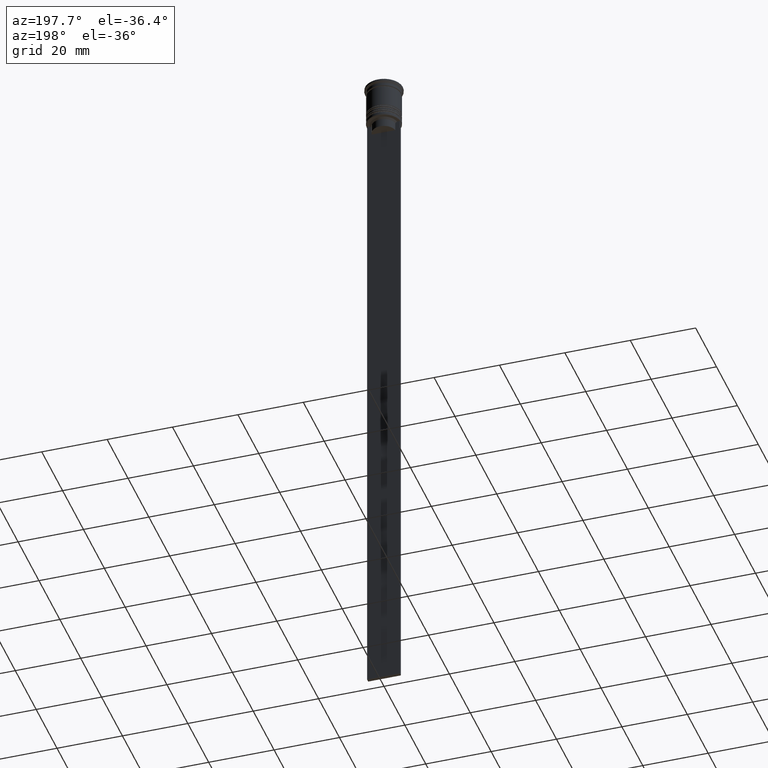
[diagram: clean part render]
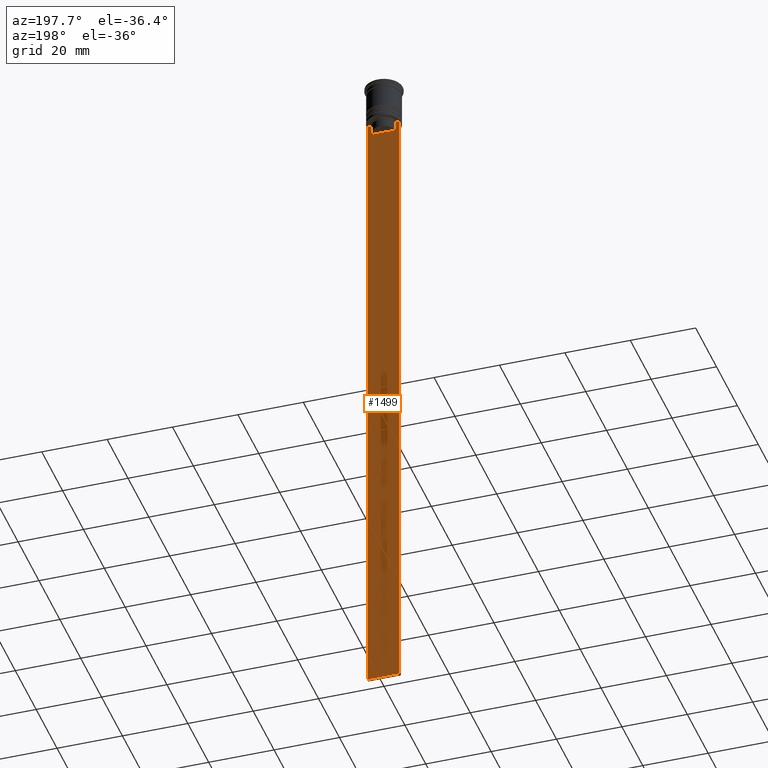
[diagram: same view with one face highlighted and labeled with its STEP entity id]
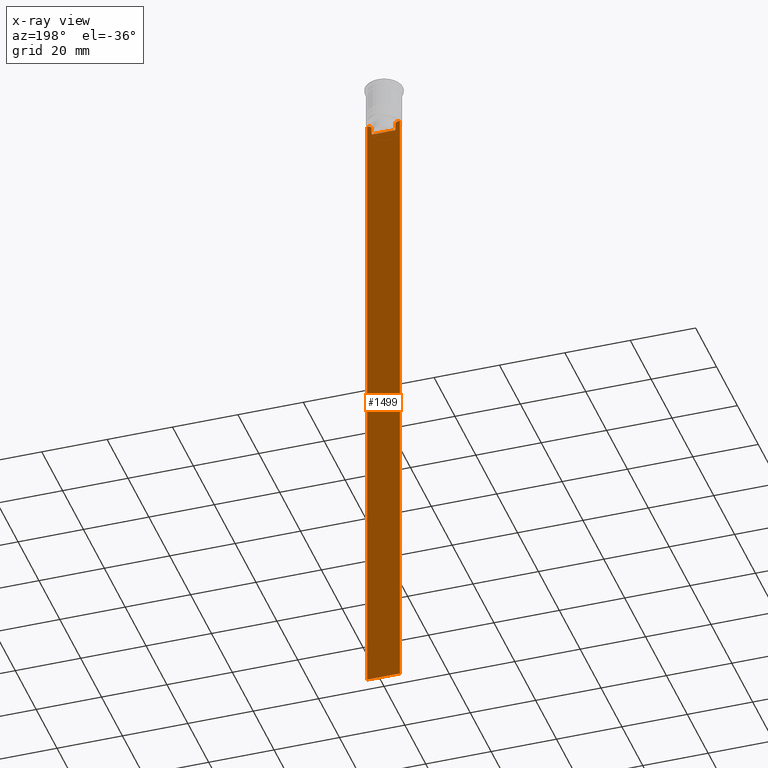
[diagram: x-ray of the same camera — body ghosted, the highlighted face saturated]
A machine part, auxiliary view. The second image highlights one B-rep face of the part: STEP entity #1499.
The next image is the same camera in x-ray: the body ghosted, the highlighted face saturated — about 0% of this face is hidden behind the body in this view.
In plain terms, the highlighted planar face has unit normal (0, -1, -0).
Its self-contained STEP definition (entity closure, byte-faithful):
#9 = DIRECTION ( 'NONE',  ( 1.000000000000000000, 0.000000000000000000, 0.000000000000000000 ) ) ;
#44 = CARTESIAN_POINT ( 'NONE',  ( -3.615591237958188042, 0.4999999999999991673, 0.000000000000000000 ) ) ;
#62 = VERTEX_POINT ( 'NONE', #1427 ) ;
#107 = LINE ( 'NONE', #438, #990 ) ;
#152 = ORIENTED_EDGE ( 'NONE', *, *, #2254, .T. ) ;
#168 = CARTESIAN_POINT ( 'NONE',  ( -3.615591237958188486, 0.4999999999999991673, -15.50000000000000000 ) ) ;
#172 = LINE ( 'NONE', #336, #1171 ) ;
#199 = LINE ( 'NONE', #213, #2249 ) ;
#213 = CARTESIAN_POINT ( 'NONE',  ( 5.000000000000000000, 0.4999999999999991673, -12.50000000000000000 ) ) ;
#219 = VERTEX_POINT ( 'NONE', #253 ) ;
#248 = B_SPLINE_CURVE_WITH_KNOTS ( 'NONE', 3,
 ( #1969, #2339, #1630, #705 ),
 .UNSPECIFIED., .F., .F.,
 ( 4, 4 ),
 ( 0.01745179617248911533, 0.01816207215777259493 ),
 .UNSPECIFIED. ) ;
#253 = CARTESIAN_POINT ( 'NONE',  ( 3.615591237958188042, 0.4999999999999991673, -13.00000000000000178 ) ) ;
#260 = EDGE_CURVE ( 'NONE', #62, #1756, #403, .T. ) ;
#263 = VERTEX_POINT ( 'NONE', #2262 ) ;
#276 = VERTEX_POINT ( 'NONE', #991 ) ;
#291 = VERTEX_POINT ( 'NONE', #799 ) ;
#306 = CARTESIAN_POINT ( 'NONE',  ( 3.615591237958188486, 0.4999999999999991673, -15.50000000000000000 ) ) ;
#313 = ORIENTED_EDGE ( 'NONE', *, *, #2170, .T. ) ;
#336 = CARTESIAN_POINT ( 'NONE',  ( -4.999999999999999112, 0.4999999999999991673, -2.450124378879110054 ) ) ;
#369 = VERTEX_POINT ( 'NONE', #306 ) ;
#403 = LINE ( 'NONE', #44, #803 ) ;
#438 = CARTESIAN_POINT ( 'NONE',  ( 0.000000000000000000, 0.4999999999999991673, -15.50000000000000000 ) ) ;
#466 = EDGE_CURVE ( 'NONE', #369, #219, #1433, .T. ) ;
#508 = CARTESIAN_POINT ( 'NONE',  ( 5.000000000000000000, 0.4999999999999991673, -12.50000000000000000 ) ) ;
#518 = CARTESIAN_POINT ( 'NONE',  ( -3.783746449387932920, 0.4999999999999991673, -12.83342999751715752 ) ) ;
#551 = CARTESIAN_POINT ( 'NONE',  ( -3.615591237958188042, 0.4999999999999991673, -13.00000000000000178 ) ) ;
#557 = ORIENTED_EDGE ( 'NONE', *, *, #1705, .T. ) ;
#646 = CARTESIAN_POINT ( 'NONE',  ( 5.000000000000000000, 0.4999999999999991673, -2.450124378879110054 ) ) ;
#674 = DIRECTION ( 'NONE',  ( 0.000000000000000000, 0.000000000000000000, -1.000000000000000000 ) ) ;
#705 = CARTESIAN_POINT ( 'NONE',  ( 4.119769411022908834, 0.4999999999999991673, -12.50000000000000000 ) ) ;
#709 = DIRECTION ( 'NONE',  ( 0.000000000000000000, 0.000000000000000000, -1.000000000000000000 ) ) ;
#724 = VERTEX_POINT ( 'NONE', #1524 ) ;
#799 = CARTESIAN_POINT ( 'NONE',  ( 5.000000000000000000, 0.4999999999999991673, -12.50000000000000000 ) ) ;
#803 = VECTOR ( 'NONE', #1668, 1000.000000000000000 ) ;
#851 = VECTOR ( 'NONE', #1604, 1000.000000000000000 ) ;
#865 = DIRECTION ( 'NONE',  ( -0.000000000000000000, -0.000000000000000000, 1.000000000000000000 ) ) ;
#867 = B_SPLINE_CURVE_WITH_KNOTS ( 'NONE', 3,
 ( #1789, #2147, #518, #551 ),
 .UNSPECIFIED., .F., .F.,
 ( 4, 4 ),
 ( 0.007067514914986626831, 0.007777582239375527978 ),
 .UNSPECIFIED. ) ;
#941 = DIRECTION ( 'NONE',  ( 1.000000000000000000, 0.000000000000000000, 0.000000000000000000 ) ) ;
#990 = VECTOR ( 'NONE', #1574, 1000.000000000000000 ) ;
#991 = CARTESIAN_POINT ( 'NONE',  ( -4.999999999999999112, 0.4999999999999993339, -12.50000000000000000 ) ) ;
#1100 = ORIENTED_EDGE ( 'NONE', *, *, #260, .T. ) ;
#1133 = AXIS2_PLACEMENT_3D ( 'NONE', #646, #1193, #674 ) ;
#1171 = VECTOR ( 'NONE', #709, 1000.000000000000000 ) ;
#1179 = CARTESIAN_POINT ( 'NONE',  ( 4.119769411022908834, 0.4999999999999991673, -12.50000000000000000 ) ) ;
#1193 = DIRECTION ( 'NONE',  ( 0.000000000000000000, -1.000000000000000000, -0.000000000000000000 ) ) ;
#1207 = FACE_OUTER_BOUND ( 'NONE', #1855, .T. ) ;
#1221 = EDGE_CURVE ( 'NONE', #724, #263, #2141, .T. ) ;
#1314 = EDGE_CURVE ( 'NONE', #276, #263, #172, .T. ) ;
#1347 = ORIENTED_EDGE ( 'NONE', *, *, #1221, .T. ) ;
#1419 = VECTOR ( 'NONE', #865, 1000.000000000000000 ) ;
#1427 = CARTESIAN_POINT ( 'NONE',  ( -3.615591237958188042, 0.4999999999999991673, -13.00000000000000178 ) ) ;
#1433 = LINE ( 'NONE', #2166, #1419 ) ;
#1434 = CARTESIAN_POINT ( 'NONE',  ( 5.000000000000000000, 0.4999999999999991673, -2.450124378879110054 ) ) ;
#1473 = ORIENTED_EDGE ( 'NONE', *, *, #1767, .T. ) ;
#1499 = ADVANCED_FACE ( 'NONE', ( #1207 ), #2272, .F. ) ;
#1524 = CARTESIAN_POINT ( 'NONE',  ( 5.000000000000000000, 0.4999999999999991673, -212.5000000000000284 ) ) ;
#1540 = VERTEX_POINT ( 'NONE', #1179 ) ;
#1574 = DIRECTION ( 'NONE',  ( 1.000000000000000000, 0.000000000000000000, 0.000000000000000000 ) ) ;
#1604 = DIRECTION ( 'NONE',  ( -1.000000000000000000, 0.000000000000000000, 0.000000000000000000 ) ) ;
#1630 = CARTESIAN_POINT ( 'NONE',  ( 3.951794168112527927, 0.4999999999999991673, -12.66675163073525923 ) ) ;
#1668 = DIRECTION ( 'NONE',  ( 0.000000000000000000, 0.000000000000000000, -1.000000000000000000 ) ) ;
#1691 = ORIENTED_EDGE ( 'NONE', *, *, #1314, .F. ) ;
#1705 = EDGE_CURVE ( 'NONE', #276, #1760, #2138, .T. ) ;
#1756 = VERTEX_POINT ( 'NONE', #168 ) ;
#1760 = VERTEX_POINT ( 'NONE', #1805 ) ;
#1767 = EDGE_CURVE ( 'NONE', #291, #724, #2333, .T. ) ;
#1789 = CARTESIAN_POINT ( 'NONE',  ( -4.119769411022908834, 0.4999999999999991673, -12.50000000000000000 ) ) ;
#1805 = CARTESIAN_POINT ( 'NONE',  ( -4.119769411022908834, 0.4999999999999991673, -12.50000000000000000 ) ) ;
#1855 = EDGE_LOOP ( 'NONE', ( #557, #313, #1100, #1901, #2301, #2083, #152, #1473, #1347, #1691 ) ) ;
#1901 = ORIENTED_EDGE ( 'NONE', *, *, #1972, .T. ) ;
#1969 = CARTESIAN_POINT ( 'NONE',  ( 3.615591237958188042, 0.4999999999999991673, -13.00000000000000178 ) ) ;
#1972 = EDGE_CURVE ( 'NONE', #1756, #369, #107, .T. ) ;
#2077 = EDGE_CURVE ( 'NONE', #219, #1540, #248, .T. ) ;
#2083 = ORIENTED_EDGE ( 'NONE', *, *, #2077, .T. ) ;
#2138 = LINE ( 'NONE', #508, #2239 ) ;
#2141 = LINE ( 'NONE', #2335, #851 ) ;
#2147 = CARTESIAN_POINT ( 'NONE',  ( -3.951794205566887985, 0.4999999999999991673, -12.66675159355373737 ) ) ;
#2158 = DIRECTION ( 'NONE',  ( 0.000000000000000000, 0.000000000000000000, -1.000000000000000000 ) ) ;
#2166 = CARTESIAN_POINT ( 'NONE',  ( 3.615591237958188042, 0.4999999999999991673, 0.000000000000000000 ) ) ;
#2170 = EDGE_CURVE ( 'NONE', #1760, #62, #867, .T. ) ;
#2206 = VECTOR ( 'NONE', #2158, 1000.000000000000000 ) ;
#2239 = VECTOR ( 'NONE', #9, 1000.000000000000000 ) ;
#2249 = VECTOR ( 'NONE', #941, 1000.000000000000000 ) ;
#2254 = EDGE_CURVE ( 'NONE', #1540, #291, #199, .T. ) ;
#2262 = CARTESIAN_POINT ( 'NONE',  ( -4.999999999999999112, 0.4999999999999991673, -212.5000000000000284 ) ) ;
#2272 = PLANE ( 'NONE',  #1133 ) ;
#2301 = ORIENTED_EDGE ( 'NONE', *, *, #466, .T. ) ;
#2333 = LINE ( 'NONE', #1434, #2206 ) ;
#2335 = CARTESIAN_POINT ( 'NONE',  ( 5.000000000000000000, 0.4999999999999991673, -212.5000000000000284 ) ) ;
#2339 = CARTESIAN_POINT ( 'NONE',  ( 3.783746406711540722, 0.4999999999999991673, -12.83343003979123509 ) ) ;